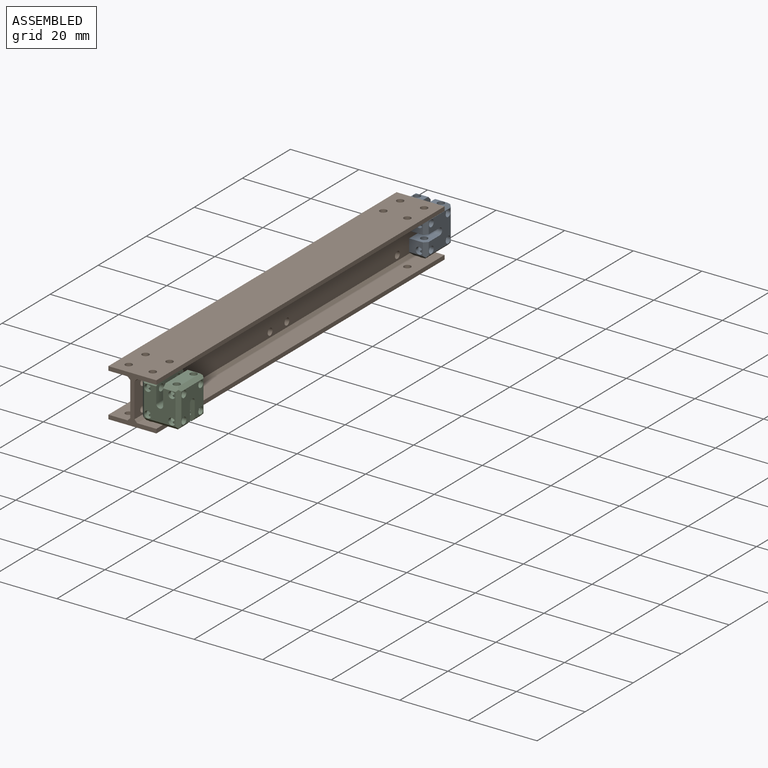
[diagram: assembled view]
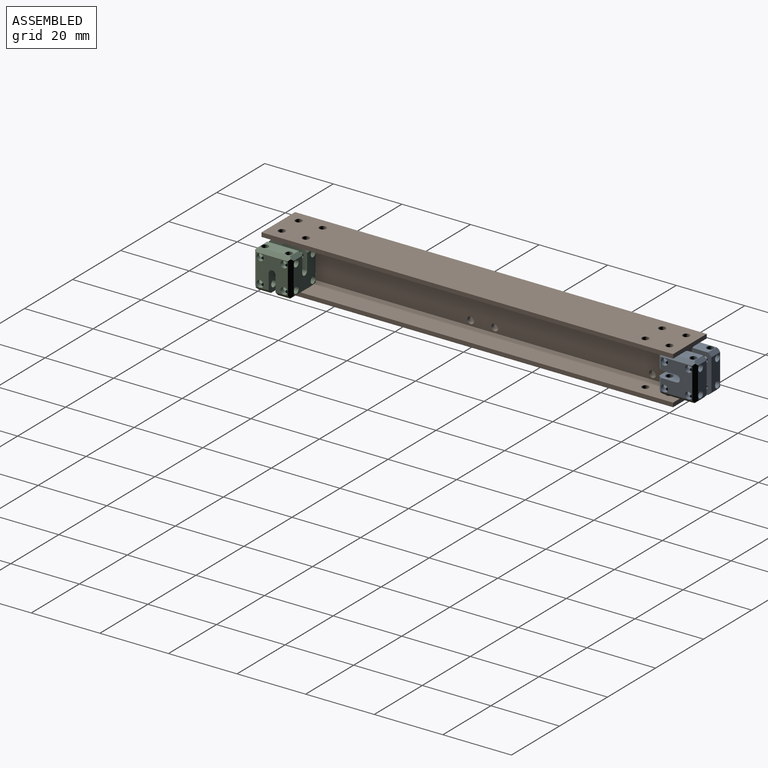
[diagram: assembled view, second angle]
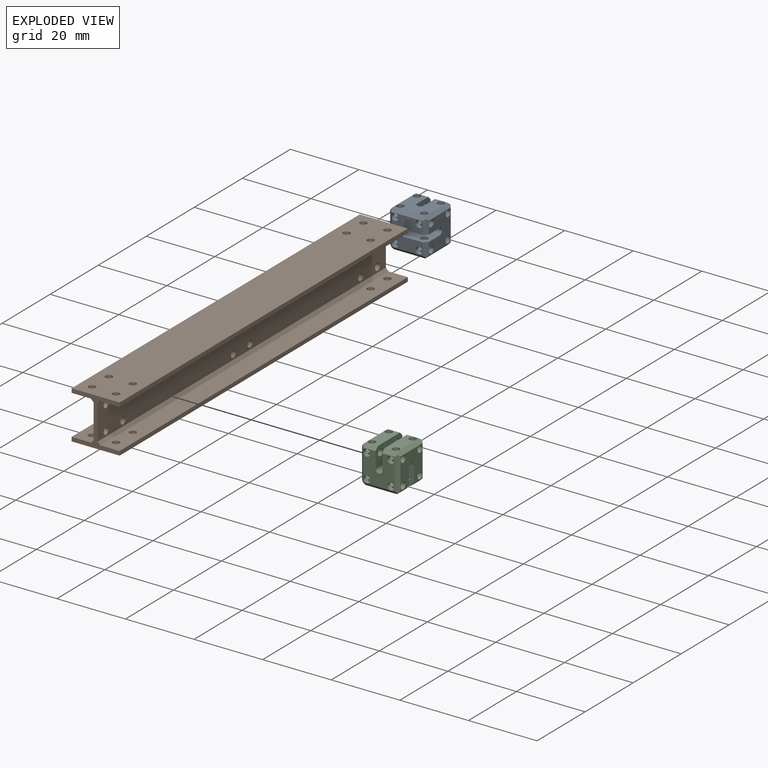
[diagram: exploded view]
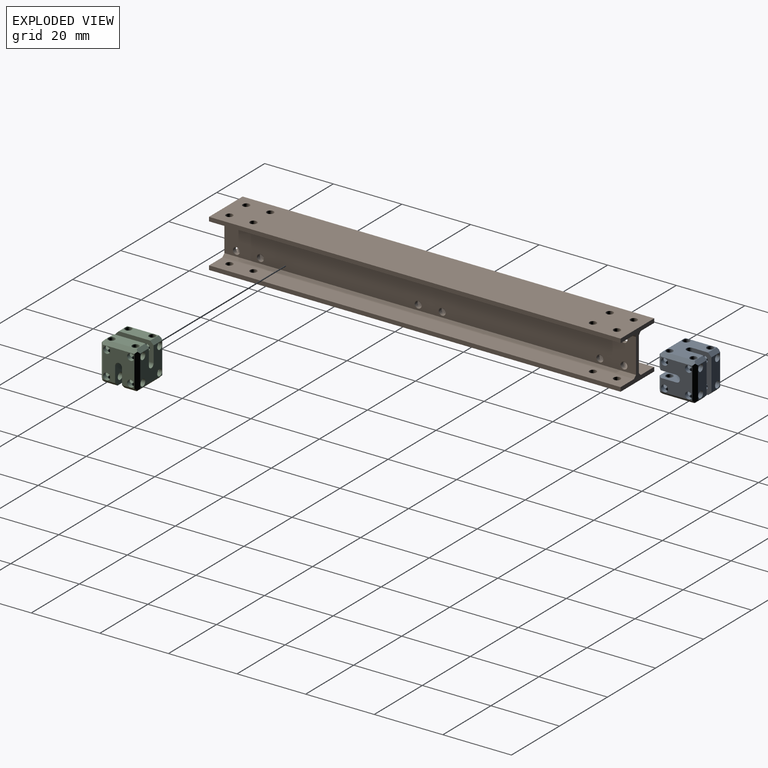
[diagram: exploded view, second angle]
ASSEMBLY  parts=3 mates=3
PART A: 76 faces, bbox 11.2x11.2x11.2 mm
  f0: plane 9.2x3.6mm, normal (-1,0,0), area 26.8mm2, adj f19,f20,f40,f53,f59,f66
  f1: cylinder r=1mm len=2mm, axis (0,1,0), area 7.5mm2, adj f14,f15,f27,f60,f67
  f2: cylinder r=1mm len=2mm, axis (0,1,0), area 7.5mm2, adj f11,f13,f29,f68,f69
  f3: cylinder r=1mm len=2mm, axis (0,1,0), area 7.5mm2, adj f9,f10,f29,f69,f70
  f4: cylinder r=1mm len=2mm, axis (0,1,0), area 7.5mm2, adj f6,f7,f27,f59,f60
  f5: plane 9.2x3.6mm, normal (-1,0,0), area 26.8mm2, adj f34,f43,f52,f65,f70,f73
  f6: cylinder r=1mm len=5.59mm, axis (0,0,1), area 32.7mm2, adj f4,f16,f25,f54,f59,f60,f61,f66
  f7: cylinder r=1mm len=2mm, axis (0,0,1), area 7.5mm2, adj f4,f16,f18,f59,f60
  f8: cylinder r=1mm len=2mm, axis (0,1,0), area 10.1mm2, adj f9,f10,f52,f69,f70
  f9: cylinder r=1mm len=2mm, axis (0,0,1), area 7.5mm2, adj f3,f8,f18,f69,f70
  f10: cylinder r=1mm len=5.59mm, axis (0,0,1), area 32.7mm2, adj f3,f8,f24,f56,f64,f65,f69,f70
  f11: cylinder r=1mm len=2mm, axis (0,0,1), area 10.1mm2, adj f2,f12,f22,f68,f69
  f12: cylinder r=1mm len=5.59mm, axis (0,1,0), area 32.7mm2, adj f11,f13,f14,f15,f60,f67,f68,f69
  f13: cylinder r=1mm len=2mm, axis (0,0,1), area 7.5mm2, adj f2,f12,f18,f68,f69
  f14: cylinder r=1mm len=2mm, axis (0,0,1), area 7.5mm2, adj f1,f12,f18,f60,f67
  f15: cylinder r=1mm len=2mm, axis (0,0,1), area 10.1mm2, adj f1,f12,f22,f60,f67
  f16: cylinder r=1mm len=2mm, axis (0,1,0), area 10.1mm2, adj f6,f7,f53,f59,f60
  f17: plane 9.2x9.2mm, normal (0,0,1), area 61.3mm2, adj f19,f32,f34,f35,f47,f48,f51,f52
  f18: plane 9.2x9.2mm, normal (0,0,-1), area 61.3mm2, adj f7,f9,f13,f14,f20,f37,f41,f43
  f19: plane 3.6x1mm, normal (-0.71,0,0.71), area 5.1mm2, adj f0,f17,f38,f53
  f20: plane 3.6x1mm, normal (-0.71,0,-0.71), area 5.1mm2, adj f0,f18,f42,f53
  f21: cylinder r=1mm len=4.6mm, axis (0,1,0), area 14.5mm2, adj f22,f23,f27,f53
  f22: plane 11.2x5.6mm, normal (0,0,1), area 53.9mm2, adj f11,f15,f21,f27,f28,f29,f30,f44
  f23: plane 11.2x5.6mm, normal (0,0,-1), area 53.9mm2, adj f21,f27,f29,f31,f36,f44,f46,f49
  f24: cylinder r=1mm len=2mm, axis (0,1,0), area 7.5mm2, adj f10,f29,f57,f64,f65
  f25: cylinder r=1mm len=2mm, axis (0,1,0), area 7.5mm2, adj f6,f27,f55,f61,f66
  f26: cylinder r=1mm len=2mm, axis (0,1,0), area 7.5mm2, adj f27,f48,f49,f61,f62
  f27: plane 9.2x9.2mm, normal (0,-1,0), area 61.3mm2, adj f1,f4,f21,f22,f23,f25,f26,f30
  f28: plane 9.2x3.6mm, normal (1,0,0), area 26.8mm2, adj f22,f30,f37,f67,f68,f71
  f29: plane 9.2x9.2mm, normal (0,1,0), area 61.3mm2, adj f2,f3,f22,f23,f24,f44,f45,f71
  f30: plane 3.6x1mm, normal (0.71,-0.71,0), area 5.1mm2, adj f22,f27,f28,f39
  f31: plane 9.2x3.6mm, normal (1,0,0), area 26.8mm2, adj f23,f32,f36,f62,f63,f75
  f32: plane 9.7x1mm, normal (0.71,0,0.71), area 13.4mm2, adj f17,f31,f33,f74,f75
  f33: plane 1x1mm, normal (0.58,-0.58,0.58), area 0.9mm2, adj f32,f35,f36
  f34: plane 4.1x1mm, normal (-0.71,0,0.71), area 5.4mm2, adj f5,f17,f52,f73,f74
  f35: plane 9.2x1mm, normal (0,-0.71,0.71), area 13mm2, adj f17,f27,f33,f38
  f36: plane 3.6x1mm, normal (0.71,-0.71,0), area 5.1mm2, adj f23,f27,f31,f33
  f37: plane 9.7x1mm, normal (0.71,0,-0.71), area 13.4mm2, adj f18,f28,f39,f71,f72
  f38: plane 1x1mm, normal (-0.58,-0.58,0.58), area 0.9mm2, adj f19,f35,f40
  f39: plane 1x1mm, normal (0.58,-0.58,-0.58), area 0.9mm2, adj f30,f37,f41
  f40: plane 9.2x1mm, normal (-0.71,-0.71,0), area 13mm2, adj f0,f27,f38,f42
  f41: plane 9.2x1mm, normal (0,-0.71,-0.71), area 13mm2, adj f18,f27,f39,f42
  f42: plane 1x1mm, normal (-0.58,-0.58,-0.58), area 0.9mm2, adj f20,f40,f41
  f43: plane 4.1x1mm, normal (-0.71,0,-0.71), area 5.4mm2, adj f5,f18,f52,f72,f73
  f44: cylinder r=1mm len=4.6mm, axis (0,1,0), area 14.5mm2, adj f22,f23,f29,f52
  f45: cylinder r=1mm len=2mm, axis (0,1,0), area 7.5mm2, adj f29,f46,f47,f63,f64
  f46: cylinder r=1mm len=2mm, axis (0,0,1), area 10.1mm2, adj f23,f45,f58,f63,f64
  f47: cylinder r=1mm len=2mm, axis (0,0,1), area 7.5mm2, adj f17,f45,f58,f63,f64
  f48: cylinder r=1mm len=2mm, axis (0,0,1), area 7.5mm2, adj f17,f26,f58,f61,f62
  f49: cylinder r=1mm len=2mm, axis (0,0,1), area 10.1mm2, adj f23,f26,f58,f61,f62
  f50: cylinder r=1mm len=4.6mm, axis (0,0,1), area 14.5mm2, adj f18,f22,f52,f53
  f51: cylinder r=1mm len=4.6mm, axis (0,0,1), area 14.5mm2, adj f17,f23,f52,f53
  f52: plane 11.2x5.6mm, normal (0,-1,0), area 53.9mm2, adj f5,f8,f17,f18,f34,f43,f44,f50
  f53: plane 11.2x5.6mm, normal (0,1,0), area 53.9mm2, adj f0,f16,f17,f18,f19,f20,f21,f50
  f54: cylinder r=1mm len=2mm, axis (0,1,0), area 10.1mm2, adj f6,f53,f55,f61,f66
  f55: cylinder r=1mm len=2mm, axis (0,0,1), area 7.5mm2, adj f17,f25,f54,f61,f66
  f56: cylinder r=1mm len=2mm, axis (0,1,0), area 10.1mm2, adj f10,f52,f57,f64,f65
  f57: cylinder r=1mm len=2mm, axis (0,0,1), area 7.5mm2, adj f17,f24,f56,f64,f65
  f58: cylinder r=1mm len=5.59mm, axis (0,1,0), area 32.7mm2, adj f46,f47,f48,f49,f61,f62,f63,f64
  f59: cylinder r=1mm len=2mm, axis (-1,0,0), area 7.5mm2, adj f0,f4,f6,f7,f16
  f60: cylinder r=1mm len=5.59mm, axis (-1,0,0), area 32.7mm2, adj f1,f4,f6,f7,f12,f14,f15,f16
  f61: cylinder r=1mm len=5.59mm, axis (-1,0,0), area 32.7mm2, adj f6,f25,f26,f48,f49,f54,f55,f58
  f62: cylinder r=1mm len=2mm, axis (-1,0,0), area 7.5mm2, adj f26,f31,f48,f49,f58
  f63: cylinder r=1mm len=2mm, axis (-1,0,0), area 7.5mm2, adj f31,f45,f46,f47,f58
  f64: cylinder r=1mm len=5.59mm, axis (-1,0,0), area 32.7mm2, adj f10,f24,f45,f46,f47,f56,f57,f58
  f65: cylinder r=1mm len=2mm, axis (-1,0,0), area 7.5mm2, adj f5,f10,f24,f56,f57
  f66: cylinder r=1mm len=2mm, axis (-1,0,0), area 7.5mm2, adj f0,f6,f25,f54,f55
  f67: cylinder r=1mm len=2mm, axis (-1,0,0), area 7.5mm2, adj f1,f12,f14,f15,f28
  f68: cylinder r=1mm len=2mm, axis (-1,0,0), area 7.5mm2, adj f2,f11,f12,f13,f28
  f69: cylinder r=1mm len=5.59mm, axis (-1,0,0), area 32.7mm2, adj f2,f3,f8,f9,f10,f11,f12,f13
  f70: cylinder r=1mm len=2mm, axis (-1,0,0), area 7.5mm2, adj f3,f5,f8,f9,f10
  f71: plane 4.1x1mm, normal (0.71,0.71,0), area 5.4mm2, adj f22,f28,f29,f37,f72
  f72: plane 10.2x1mm, normal (0,0.71,-0.71), area 13.7mm2, adj f18,f29,f37,f43,f71,f73
  f73: plane 10.2x1mm, normal (-0.71,0.71,0), area 13.7mm2, adj f5,f29,f34,f43,f72,f74
  f74: plane 10.2x1mm, normal (0,0.71,0.71), area 13.7mm2, adj f17,f29,f32,f34,f73,f75
  f75: plane 4.1x1mm, normal (0.71,0.71,0), area 5.4mm2, adj f23,f29,f31,f32,f74
PART B: 46 faces, bbox 14x120x14 mm
  f0: plane 120x10mm, normal (1,0,0), area 1162.3mm2, adj f8,f9,f16,f17,f34,f35,f36,f37
  f1: plane 120x10mm, normal (-1,0,0), area 1162.3mm2, adj f12,f13,f16,f17,f34,f35,f36,f37
  f2: plane 120x5.6mm, normal (0,0,1), area 659.4mm2, adj f8,f15,f16,f17,f19,f20,f23,f24
  f3: plane 120x5.6mm, normal (0,0,-1), area 659.4mm2, adj f9,f10,f16,f17,f30,f31,f32,f33
  f4: plane 120x14mm, normal (0,0,1), area 1654.9mm2, adj f10,f11,f16,f17,f26,f27,f28,f29
  f5: plane 120x5.6mm, normal (0,0,-1), area 659.4mm2, adj f11,f12,f16,f17,f26,f27,f28,f29
  f6: plane 120x5.6mm, normal (0,0,1), area 659.4mm2, adj f13,f14,f16,f17,f18,f21,f22,f25
  f7: plane 120x14mm, normal (0,0,-1), area 1654.9mm2, adj f14,f15,f16,f17,f18,f19,f20,f21
  f8: plane 120x0.8mm, normal (0.71,0,0.71), area 135.8mm2, adj f0,f2,f16,f17
  f9: plane 120x0.8mm, normal (0.71,0,-0.71), area 135.8mm2, adj f0,f3,f16,f17
  f10: plane 120x1.2mm, normal (1,0,0), area 144mm2, adj f3,f4,f16,f17
  f11: plane 120x1.2mm, normal (-1,0,0), area 144mm2, adj f4,f5,f16,f17
  f12: plane 120x0.8mm, normal (-0.71,0,-0.71), area 135.8mm2, adj f1,f5,f16,f17
  f13: plane 120x0.8mm, normal (-0.71,0,0.71), area 135.8mm2, adj f1,f6,f16,f17
  f14: plane 120x1.2mm, normal (-1,0,0), area 144mm2, adj f6,f7,f16,f17
  f15: plane 120x1.2mm, normal (1,0,0), area 144mm2, adj f2,f7,f16,f17
  f16: plane 14x14mm, normal (0,-1,0), area 48.8mm2, adj f0,f1,f2,f3,f4,f5,f6,f7
  f17: plane 14x14mm, normal (0,1,0), area 48.8mm2, adj f0,f1,f2,f3,f4,f5,f6,f7
  f18: cylinder r=1mm len=2mm, axis (0,0,1), area 7.5mm2, adj f6,f7
  f19: cylinder r=1mm len=2mm, axis (0,0,1), area 7.5mm2, adj f2,f7
  f20: cylinder r=1mm len=2mm, axis (0,0,1), area 7.5mm2, adj f2,f7
  f21: cylinder r=1mm len=2mm, axis (0,0,1), area 7.5mm2, adj f6,f7
  f22: cylinder r=1mm len=2mm, axis (0,0,1), area 7.5mm2, adj f6,f7
  f23: cylinder r=1mm len=2mm, axis (0,0,1), area 7.5mm2, adj f2,f7
  f24: cylinder r=1mm len=2mm, axis (0,0,1), area 7.5mm2, adj f2,f7
  f25: cylinder r=1mm len=2mm, axis (0,0,1), area 7.5mm2, adj f6,f7
  f26: cylinder r=1mm len=2mm, axis (0,0,1), area 7.5mm2, adj f4,f5
  f27: cylinder r=1mm len=2mm, axis (0,0,1), area 7.5mm2, adj f4,f5
  f28: cylinder r=1mm len=2mm, axis (0,0,1), area 7.5mm2, adj f4,f5
  f29: cylinder r=1mm len=2mm, axis (0,0,1), area 7.5mm2, adj f4,f5
  f30: cylinder r=1mm len=2mm, axis (0,0,1), area 7.5mm2, adj f3,f4
  f31: cylinder r=1mm len=2mm, axis (0,0,1), area 7.5mm2, adj f3,f4
  f32: cylinder r=1mm len=2mm, axis (0,0,1), area 7.5mm2, adj f3,f4
  f33: cylinder r=1mm len=2mm, axis (0,0,1), area 7.5mm2, adj f3,f4
  f34: cylinder r=1mm len=2mm, axis (1,0,0), area 7.5mm2, adj f0,f1
  f35: cylinder r=1mm len=2mm, axis (1,0,0), area 7.5mm2, adj f0,f1
  f36: cylinder r=1mm len=2mm, axis (1,0,0), area 7.5mm2, adj f0,f1
  f37: cylinder r=1mm len=2mm, axis (1,0,0), area 7.5mm2, adj f0,f1
  f38: cylinder r=1mm len=2mm, axis (1,0,0), area 7.5mm2, adj f0,f1
  f39: cylinder r=1mm len=2mm, axis (1,0,0), area 7.5mm2, adj f0,f1
  f40: cylinder r=1mm len=2mm, axis (1,0,0), area 7.5mm2, adj f0,f1
  f41: cylinder r=1mm len=2mm, axis (1,0,0), area 7.5mm2, adj f0,f1
  f42: cylinder r=1mm len=2mm, axis (1,0,0), area 7.5mm2, adj f0,f1
  f43: cylinder r=1mm len=2mm, axis (1,0,0), area 7.5mm2, adj f0,f1
  f44: cylinder r=1mm len=2mm, axis (1,0,0), area 7.5mm2, adj f0,f1
  f45: cylinder r=1mm len=2mm, axis (1,0,0), area 7.5mm2, adj f0,f1
PART C: same geometry as A
PLACE A rot(axis=(0,0,-1),90deg) t=(0,60,6.4)mm
PLACE B at identity fixed
PLACE C rot(axis=(0.58,0.58,-0.58),120deg) t=(7,-53,6.4)mm
MATE slider C.f1 <-> B.f45  axis (1,0,0) through (1.4,-49.5,2.9)mm
MATE slider C.f59 <-> B.f23  axis (0,0,1) through (3.5,-49.5,0.8)mm
MATE slider B.f21 <-> A.f14  axis (0,0,1) through (-3.5,56.5,12.2)mm
